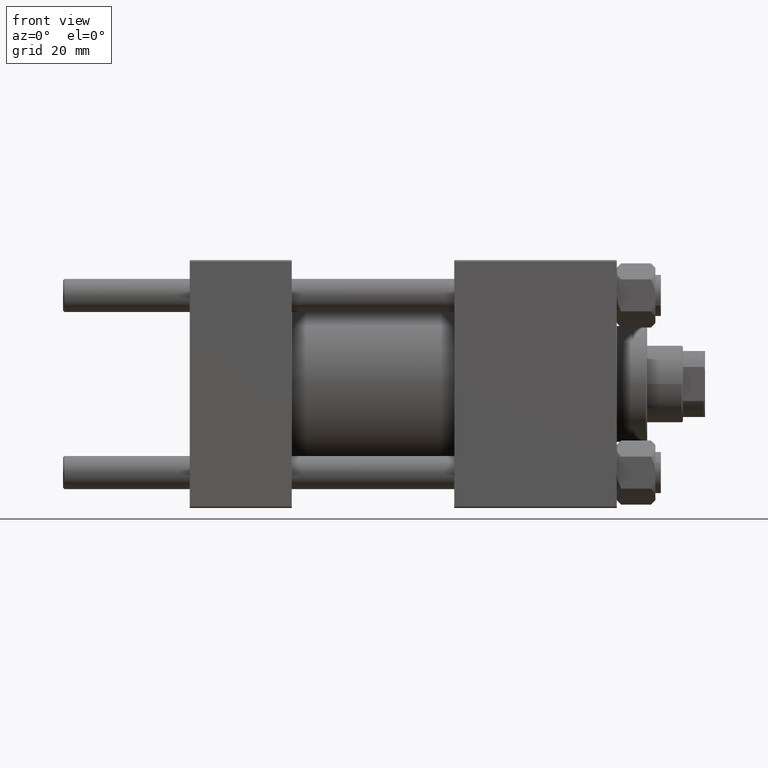
[diagram: clean part render]
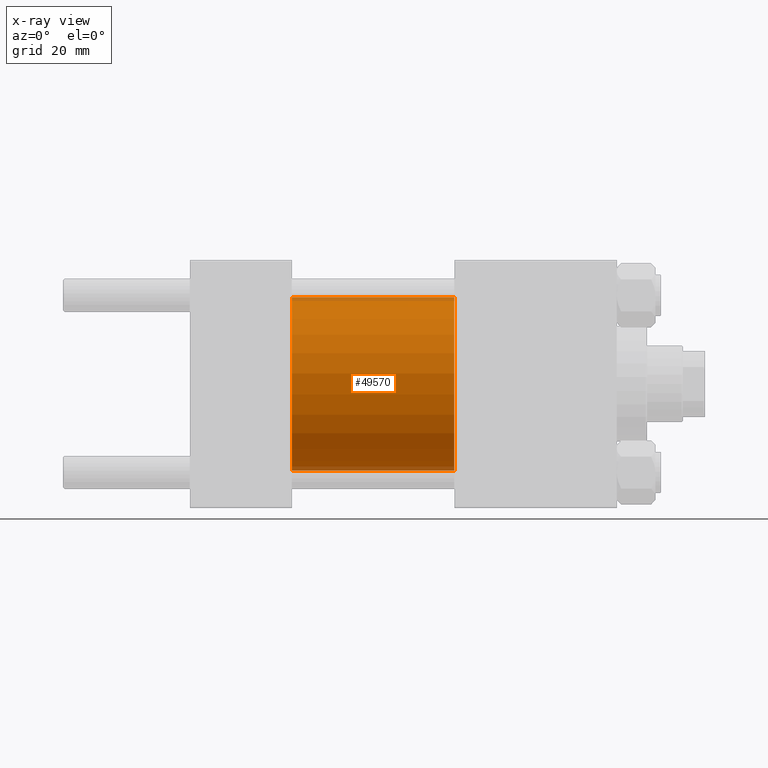
[diagram: x-ray — body ghosted, one internal face saturated and labeled with its STEP entity id]
A machine part, front view, then the same camera in x-ray: the body is ghosted and one INTERNAL B-rep face — a face not visible from any outside direction — is saturated and labeled: STEP entity #49570.
In plain terms, the highlighted cylindrical surface (partial cylindrical patch) has radius 31.5 mm, axis along (-1, -0, -0).
Its self-contained STEP definition (entity closure, byte-faithful):
#2900 = EDGE_LOOP ( 'NONE', ( #16591, #20210, #41174, #21440 ) ) ;
#5053 = EDGE_CURVE ( 'NONE', #45329, #21870, #31937, .T. ) ;
#5613 = CARTESIAN_POINT ( 'NONE',  ( 96.00000000000000000, 0.000000000000000000, 0.000000000000000000 ) ) ;
#5895 = VERTEX_POINT ( 'NONE', #17827 ) ;
#7770 = VECTOR ( 'NONE', #20272, 1000.000000000000000 ) ;
#7869 = CARTESIAN_POINT ( 'NONE',  ( 96.00000000000000000, 0.000000000000000000, 31.50000000000000000 ) ) ;
#9702 = CARTESIAN_POINT ( 'NONE',  ( 37.00000000000000000, 0.000000000000000000, 0.000000000000000000 ) ) ;
#11723 = LINE ( 'NONE', #16495, #7770 ) ;
#13042 = CARTESIAN_POINT ( 'NONE',  ( 96.00000000000000000, 3.857637417314162689E-15, -31.50000000000000000 ) ) ;
#14342 = DIRECTION ( 'NONE',  ( 1.000000000000000000, 0.000000000000000000, 0.000000000000000000 ) ) ;
#16495 = CARTESIAN_POINT ( 'NONE',  ( 96.00000000000000000, 0.000000000000000000, 31.50000000000000000 ) ) ;
#16591 = ORIENTED_EDGE ( 'NONE', *, *, #37160, .T. ) ;
#17827 = CARTESIAN_POINT ( 'NONE',  ( 37.00000000000000000, 0.000000000000000000, 31.50000000000000000 ) ) ;
#17912 = VECTOR ( 'NONE', #28162, 1000.000000000000000 ) ;
#20210 = ORIENTED_EDGE ( 'NONE', *, *, #5053, .T. ) ;
#20272 = DIRECTION ( 'NONE',  ( -1.000000000000000000, -0.000000000000000000, -0.000000000000000000 ) ) ;
#20890 = AXIS2_PLACEMENT_3D ( 'NONE', #5613, #47628, #44112 ) ;
#21308 = EDGE_CURVE ( 'NONE', #5895, #21870, #23099, .T. ) ;
#21440 = ORIENTED_EDGE ( 'NONE', *, *, #38886, .F. ) ;
#21870 = VERTEX_POINT ( 'NONE', #32185 ) ;
#23099 = CIRCLE ( 'NONE', #29544, 31.50000000000000000 ) ;
#24303 = DIRECTION ( 'NONE',  ( 0.000000000000000000, 0.000000000000000000, -1.000000000000000000 ) ) ;
#28162 = DIRECTION ( 'NONE',  ( -1.000000000000000000, -0.000000000000000000, -0.000000000000000000 ) ) ;
#29544 = AXIS2_PLACEMENT_3D ( 'NONE', #9702, #43662, #24303 ) ;
#30118 = VERTEX_POINT ( 'NONE', #7869 ) ;
#31862 = AXIS2_PLACEMENT_3D ( 'NONE', #33475, #14342, #45025 ) ;
#31937 = LINE ( 'NONE', #13042, #17912 ) ;
#32185 = CARTESIAN_POINT ( 'NONE',  ( 37.00000000000000000, 3.857637417314162689E-15, -31.50000000000000000 ) ) ;
#32304 = FACE_OUTER_BOUND ( 'NONE', #2900, .T. ) ;
#33475 = CARTESIAN_POINT ( 'NONE',  ( 96.00000000000000000, 0.000000000000000000, 0.000000000000000000 ) ) ;
#37160 = EDGE_CURVE ( 'NONE', #30118, #45329, #47122, .T. ) ;
#38886 = EDGE_CURVE ( 'NONE', #30118, #5895, #11723, .T. ) ;
#40105 = CYLINDRICAL_SURFACE ( 'NONE', #20890, 31.50000000000000000 ) ;
#41174 = ORIENTED_EDGE ( 'NONE', *, *, #21308, .F. ) ;
#43662 = DIRECTION ( 'NONE',  ( 1.000000000000000000, 0.000000000000000000, 0.000000000000000000 ) ) ;
#44112 = DIRECTION ( 'NONE',  ( 0.000000000000000000, 0.000000000000000000, 1.000000000000000000 ) ) ;
#45025 = DIRECTION ( 'NONE',  ( 0.000000000000000000, 0.000000000000000000, -1.000000000000000000 ) ) ;
#45329 = VERTEX_POINT ( 'NONE', #49248 ) ;
#47122 = CIRCLE ( 'NONE', #31862, 31.50000000000000000 ) ;
#47628 = DIRECTION ( 'NONE',  ( -1.000000000000000000, -0.000000000000000000, -0.000000000000000000 ) ) ;
#49248 = CARTESIAN_POINT ( 'NONE',  ( 96.00000000000000000, 3.857637417314162689E-15, -31.50000000000000000 ) ) ;
#49570 = ADVANCED_FACE ( 'NONE', ( #32304 ), #40105, .F. ) ;